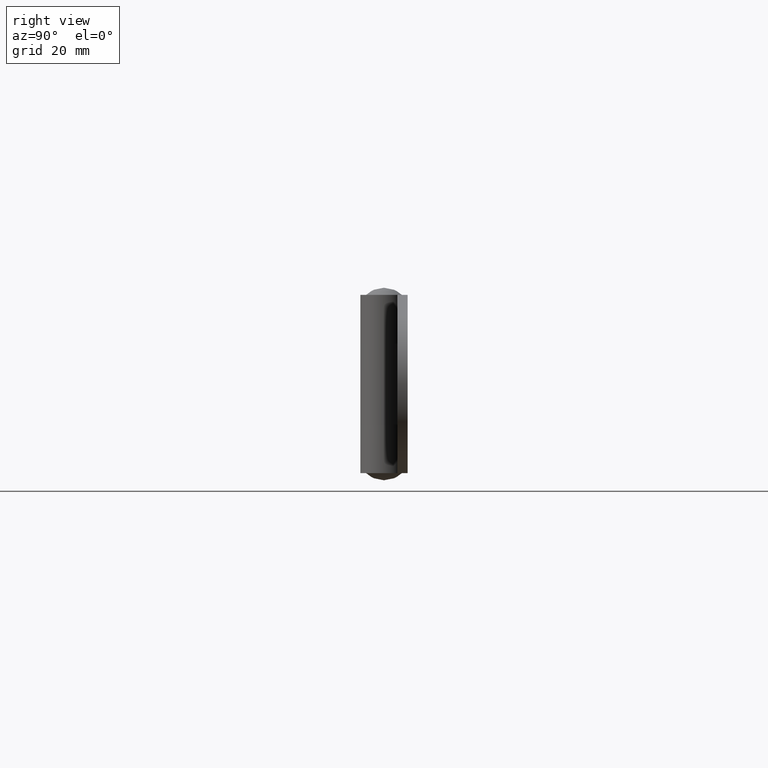
[diagram: clean part render]
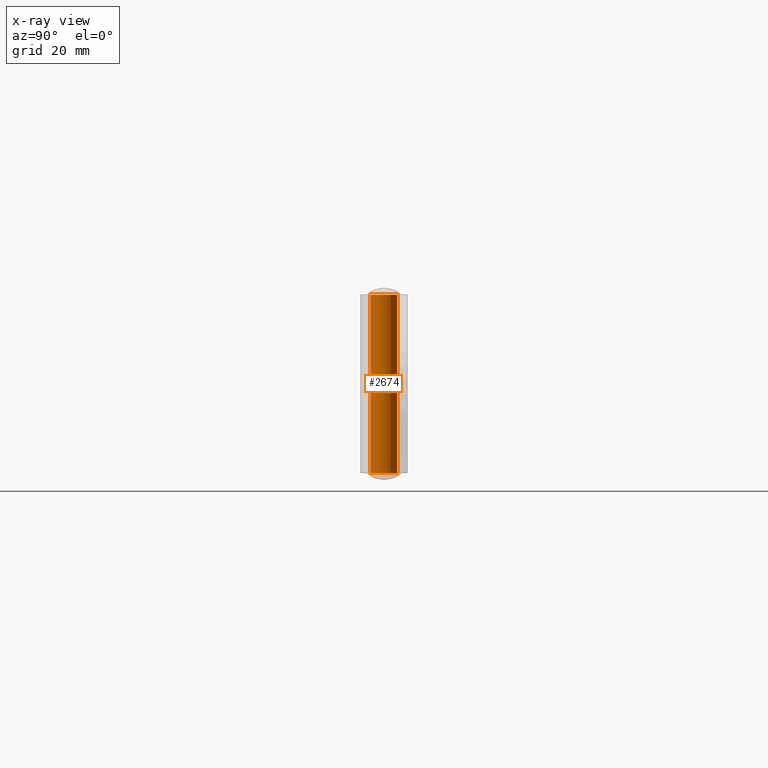
[diagram: x-ray — body ghosted, one internal face saturated and labeled with its STEP entity id]
A machine part, right view, then the same camera in x-ray: the body is ghosted and one INTERNAL B-rep face — a face not visible from any outside direction — is saturated and labeled: STEP entity #2674.
In plain terms, the highlighted face is a freeform B-spline surface patch.
Its self-contained STEP definition (entity closure, byte-faithful):
#2572=CARTESIAN_POINT('',(-0.354102703970275,2.979028579091000,41.000000000000014));
#2573=CARTESIAN_POINT('',(-0.268844185913933,2.989162846345817,41.000000000000014));
#2574=CARTESIAN_POINT('',(-0.183145618604571,2.994404395265600,41.000000000000007));
#2575=CARTESIAN_POINT('',(2.811258776661029,3.177550013870171,41.000000000000014));
#2576=CARTESIAN_POINT('',(2.994404395265600,0.183145618604571,41.000000000000007));
#2577=CARTESIAN_POINT('',(3.177550013870171,-2.811258776661029,41.000000000000014));
#2578=CARTESIAN_POINT('',(0.183145618604571,-2.994404395265600,41.000000000000007));
#2579=CARTESIAN_POINT('',(-0.354102703970275,2.979028579091000,-1.024999999999999));
#2580=CARTESIAN_POINT('',(-0.268844185913933,2.989162846345817,-1.024999999999999));
#2581=CARTESIAN_POINT('',(-0.183145618604571,2.994404395265600,-1.024999999999999));
#2582=CARTESIAN_POINT('',(2.811258776661029,3.177550013870171,-1.024999999999999));
#2583=CARTESIAN_POINT('',(2.994404395265600,0.183145618604571,-1.024999999999999));
#2584=CARTESIAN_POINT('',(3.177550013870171,-2.811258776661029,-1.024999999999999));
#2585=CARTESIAN_POINT('',(0.183145618604571,-2.994404395265600,-1.024999999999999));
#2593=(BOUNDED_SURFACE()B_SPLINE_SURFACE(2,1,((#2572,#2579),(#2573,#2580),(#2574,#2581),(#2575,#2582),(#2576,#2583),(#2577,#2584),(#2578,#2585)),.UNSPECIFIED.,.F.,.F.,.U.)B_SPLINE_SURFACE_WITH_KNOTS((3,2,2,3),(2,2),(0.0,0.198822509939086,5.169385258416225,10.139948006893370),(0.0,42.025000000000013),.UNSPECIFIED.)GEOMETRIC_REPRESENTATION_ITEM()RATIONAL_B_SPLINE_SURFACE(((0.977505800795127,0.977505800795127),(0.988284271247462,0.988284271247462),(1.0,1.0),(0.707106781186548,0.707106781186548),(1.0,1.0),(0.707106781186548,0.707106781186548),(1.0,1.0)))REPRESENTATION_ITEM('')SURFACE());
#2594=CARTESIAN_POINT('',(-0.354102704746644,2.979028578998716,40.0));
#2595=VERTEX_POINT('',#2594);
#2596=CARTESIAN_POINT('',(3.0,0.0,40.0));
#2597=VERTEX_POINT('',#2596);
#2598=CARTESIAN_POINT('',(-0.354102704746644,2.979028578998717,40.0));
#2599=CARTESIAN_POINT('',(-0.177672359740306,3.000000000000000,39.999999999999993));
#2600=CARTESIAN_POINT('',(0.0,3.0,40.0));
#2601=CARTESIAN_POINT('',(3.0,3.0,39.999999999999993));
#2602=CARTESIAN_POINT('',(3.0,0.0,40.0));
#2610=(BOUNDED_CURVE()B_SPLINE_CURVE(2,(#2598,#2599,#2600,#2601,#2602),.UNSPECIFIED.,.F.,.U.)B_SPLINE_CURVE_WITH_KNOTS((3,2,3),(0.229562473427556,0.250000000000000,0.500000000000000),.UNSPECIFIED.)CURVE()GEOMETRIC_REPRESENTATION_ITEM()RATIONAL_B_SPLINE_CURVE((0.956026754015229,0.976055948230446,1.0,0.707106781186548,1.0))REPRESENTATION_ITEM(''));
#2611=EDGE_CURVE('',#2595,#2597,#2610,.T.);
#2612=ORIENTED_EDGE('',*,*,#2611,.T.);
#2613=CARTESIAN_POINT('',(0.183145619330630,-2.994404395221193,40.0));
#2614=VERTEX_POINT('',#2613);
#2615=CARTESIAN_POINT('',(3.0,0.0,40.0));
#2616=CARTESIAN_POINT('',(3.000000000000000,-2.822118199345942,39.999999999999993));
#2617=CARTESIAN_POINT('',(0.183145619330630,-2.994404395221193,39.999999999999993));
#2625=(BOUNDED_CURVE()B_SPLINE_CURVE(2,(#2615,#2616,#2617),.UNSPECIFIED.,.F.,.U.)B_SPLINE_CURVE_WITH_KNOTS((3,3),(0.500000000000000,0.739332962158292),.UNSPECIFIED.)CURVE()GEOMETRIC_REPRESENTATION_ITEM()RATIONAL_B_SPLINE_CURVE((1.0,0.719603993381199,0.976072041493867))REPRESENTATION_ITEM(''));
#2626=EDGE_CURVE('',#2597,#2614,#2625,.T.);
#2627=ORIENTED_EDGE('',*,*,#2626,.T.);
#2628=CARTESIAN_POINT('',(0.183145619330630,-2.994404395221193,-1.054712E-015));
#2629=VERTEX_POINT('',#2628);
#2630=CARTESIAN_POINT('',(0.183145619330630,-2.994404395221193,40.0));
#2631=CARTESIAN_POINT('',(0.183145619330630,-2.994404395221193,-1.054712E-015));
#2632=QUASI_UNIFORM_CURVE('',1,(#2630,#2631),.UNSPECIFIED.,.F.,.U.);
#2633=EDGE_CURVE('',#2614,#2629,#2632,.T.);
#2634=ORIENTED_EDGE('',*,*,#2633,.T.);
#2635=CARTESIAN_POINT('',(3.0,0.0,0.0));
#2636=VERTEX_POINT('',#2635);
#2637=CARTESIAN_POINT('',(3.0,0.0,0.0));
#2638=CARTESIAN_POINT('',(3.000000000000000,-2.822118199345942,0.0));
#2639=CARTESIAN_POINT('',(0.183145619330630,-2.994404395221193,-1.054712E-015));
#2647=(BOUNDED_CURVE()B_SPLINE_CURVE(2,(#2637,#2638,#2639),.UNSPECIFIED.,.F.,.U.)B_SPLINE_CURVE_WITH_KNOTS((3,3),(0.500000000000000,0.739332962158292),.UNSPECIFIED.)CURVE()GEOMETRIC_REPRESENTATION_ITEM()RATIONAL_B_SPLINE_CURVE((1.0,0.719603993381199,0.976072041493867))REPRESENTATION_ITEM(''));
#2648=EDGE_CURVE('',#2636,#2629,#2647,.T.);
#2649=ORIENTED_EDGE('',*,*,#2648,.F.);
#2650=CARTESIAN_POINT('',(-0.354102704746644,2.979028578998716,-1.135771E-015));
#2651=VERTEX_POINT('',#2650);
#2652=CARTESIAN_POINT('',(-0.354102704746644,2.979028578998717,-1.135771E-015));
#2653=CARTESIAN_POINT('',(-0.177672359740306,3.000000000000000,0.0));
#2654=CARTESIAN_POINT('',(0.0,3.0,0.0));
#2655=CARTESIAN_POINT('',(3.0,3.0,0.0));
#2656=CARTESIAN_POINT('',(3.0,0.0,0.0));
#2664=(BOUNDED_CURVE()B_SPLINE_CURVE(2,(#2652,#2653,#2654,#2655,#2656),.UNSPECIFIED.,.F.,.U.)B_SPLINE_CURVE_WITH_KNOTS((3,2,3),(0.229562473427556,0.250000000000000,0.500000000000000),.UNSPECIFIED.)CURVE()GEOMETRIC_REPRESENTATION_ITEM()RATIONAL_B_SPLINE_CURVE((0.956026754015229,0.976055948230446,1.0,0.707106781186548,1.0))REPRESENTATION_ITEM(''));
#2665=EDGE_CURVE('',#2651,#2636,#2664,.T.);
#2666=ORIENTED_EDGE('',*,*,#2665,.F.);
#2667=CARTESIAN_POINT('',(-0.354102704746644,2.979028578998716,40.0));
#2668=CARTESIAN_POINT('',(-0.354102704746644,2.979028578998716,-1.135771E-015));
#2669=QUASI_UNIFORM_CURVE('',1,(#2667,#2668),.UNSPECIFIED.,.F.,.U.);
#2670=EDGE_CURVE('',#2595,#2651,#2669,.T.);
#2671=ORIENTED_EDGE('',*,*,#2670,.F.);
#2672=EDGE_LOOP('',(#2612,#2627,#2634,#2649,#2666,#2671));
#2673=FACE_OUTER_BOUND('',#2672,.T.);
#2674=ADVANCED_FACE('',(#2673),#2593,.T.);